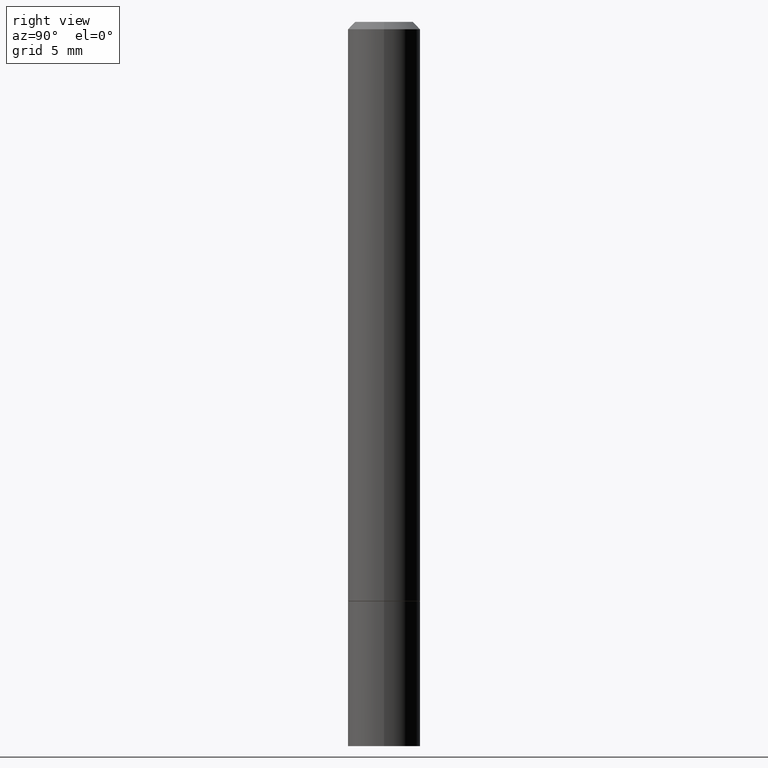
[diagram: clean part render]
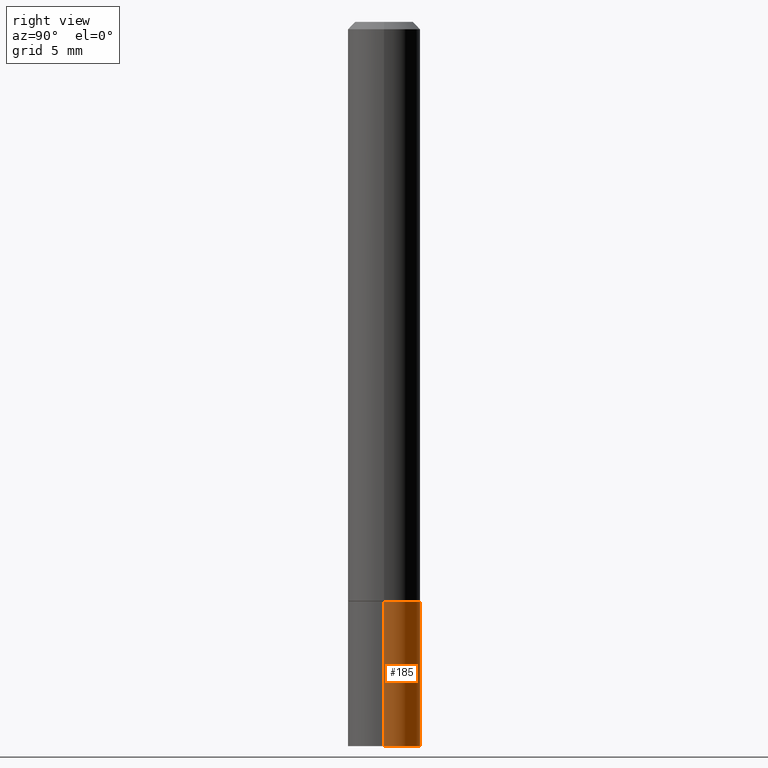
[diagram: same view with one face highlighted and labeled with its STEP entity id]
A machine part, right view. The second image highlights one B-rep face of the part: STEP entity #185.
In plain terms, the highlighted cylindrical surface (edge-blend (fillet) strip) has radius 2.5006 mm, axis along (-0, 0, 1).
Its self-contained STEP definition (entity closure, byte-faithful):
#29 = CARTESIAN_POINT ( 'NONE',  ( 3.851124275980353356E-29, -5.498384812410186155E-15, -1.574800000000000200 ) ) ;
#36 = CARTESIAN_POINT ( 'NONE',  ( -0.09844999999999999585, 6.995293233558186035E-16, -4.842691596355954042E-30 ) ) ;
#49 = DIRECTION ( 'NONE',  ( -2.445468806185136597E-29, 3.491481338843145583E-15, 1.000000000000000000 ) ) ;
#71 = LINE ( 'NONE', #269, #118 ) ;
#72 = VECTOR ( 'NONE', #181, 39.37007874015748143 ) ;
#75 = CYLINDRICAL_SURFACE ( 'NONE', #171, 0.09844999999999999585 ) ;
#77 = DIRECTION ( 'NONE',  ( 1.000000000000000000, -6.982962677686266711E-15, 4.876176775795936353E-29 ) ) ;
#78 = CARTESIAN_POINT ( 'NONE',  ( 0.09844999999999999585, -7.560453691130944267E-15, -1.968500000000000139 ) ) ;
#83 = EDGE_CURVE ( 'NONE', #235, #112, #223, .T. ) ;
#86 = AXIS2_PLACEMENT_3D ( 'NONE', #271, #299, #137 ) ;
#92 = CARTESIAN_POINT ( 'NONE',  ( -0.09844999999999999585, -5.486153590605640426E-15, -1.968500000000000139 ) ) ;
#112 = VERTEX_POINT ( 'NONE', #353 ) ;
#118 = VECTOR ( 'NONE', #247, 39.37007874015748143 ) ;
#127 = VERTEX_POINT ( 'NONE', #78 ) ;
#129 = EDGE_CURVE ( 'NONE', #127, #235, #71, .T. ) ;
#137 = DIRECTION ( 'NONE',  ( 1.000000000000000000, -6.982962677686265922E-15, 0.000000000000000000 ) ) ;
#144 = DIRECTION ( 'NONE',  ( -2.445468806185136597E-29, 3.491481338843145583E-15, 1.000000000000000000 ) ) ;
#149 = CARTESIAN_POINT ( 'NONE',  ( 0.09844999999999999585, -6.185857488028398715E-15, -1.574800000000000200 ) ) ;
#154 = EDGE_LOOP ( 'NONE', ( #295, #199, #267, #257 ) ) ;
#171 = AXIS2_PLACEMENT_3D ( 'NONE', #330, #49, #77 ) ;
#181 = DIRECTION ( 'NONE',  ( -2.445468806185136877E-29, 3.491481338843145188E-15, 1.000000000000000000 ) ) ;
#185 = ADVANCED_FACE ( 'NONE', ( #328 ), #75, .T. ) ;
#195 = AXIS2_PLACEMENT_3D ( 'NONE', #29, #144, #324 ) ;
#199 = ORIENTED_EDGE ( 'NONE', *, *, #207, .T. ) ;
#207 = EDGE_CURVE ( 'NONE', #306, #112, #244, .T. ) ;
#223 = CIRCLE ( 'NONE', #195, 0.09844999999999999585 ) ;
#235 = VERTEX_POINT ( 'NONE', #149 ) ;
#244 = LINE ( 'NONE', #36, #72 ) ;
#247 = DIRECTION ( 'NONE',  ( -2.445468806185136877E-29, 3.491481338843145188E-15, 1.000000000000000000 ) ) ;
#257 = ORIENTED_EDGE ( 'NONE', *, *, #129, .F. ) ;
#267 = ORIENTED_EDGE ( 'NONE', *, *, #83, .F. ) ;
#269 = CARTESIAN_POINT ( 'NONE',  ( 0.09844999999999999585, -6.874726756182129545E-16, 4.800596035771099214E-30 ) ) ;
#271 = CARTESIAN_POINT ( 'NONE',  ( 4.813905344975441835E-29, -6.872981015512731707E-15, -1.968500000000000139 ) ) ;
#295 = ORIENTED_EDGE ( 'NONE', *, *, #351, .T. ) ;
#299 = DIRECTION ( 'NONE',  ( -2.445468806185136597E-29, 3.491481338843145583E-15, 1.000000000000000000 ) ) ;
#306 = VERTEX_POINT ( 'NONE', #92 ) ;
#312 = CIRCLE ( 'NONE', #86, 0.09844999999999999585 ) ;
#324 = DIRECTION ( 'NONE',  ( 1.000000000000000000, -6.982962677686265922E-15, 0.000000000000000000 ) ) ;
#328 = FACE_OUTER_BOUND ( 'NONE', #154, .T. ) ;
#330 = CARTESIAN_POINT ( 'NONE',  ( 0.000000000000000000, 0.000000000000000000, 0.000000000000000000 ) ) ;
#351 = EDGE_CURVE ( 'NONE', #127, #306, #312, .T. ) ;
#353 = CARTESIAN_POINT ( 'NONE',  ( -0.09844999999999999585, -5.486153590605640426E-15, -1.574800000000000200 ) ) ;